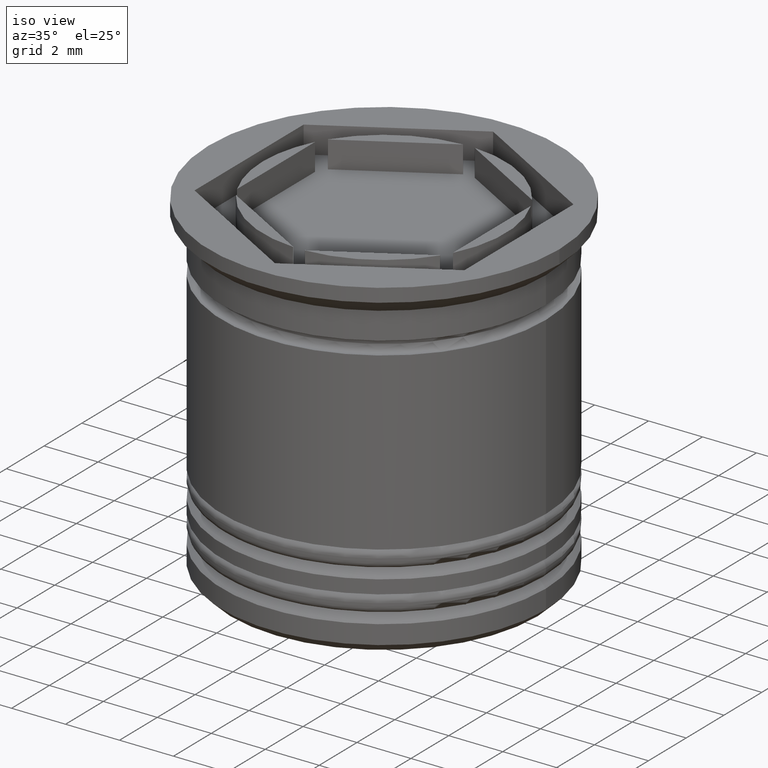
[diagram: clean part render]
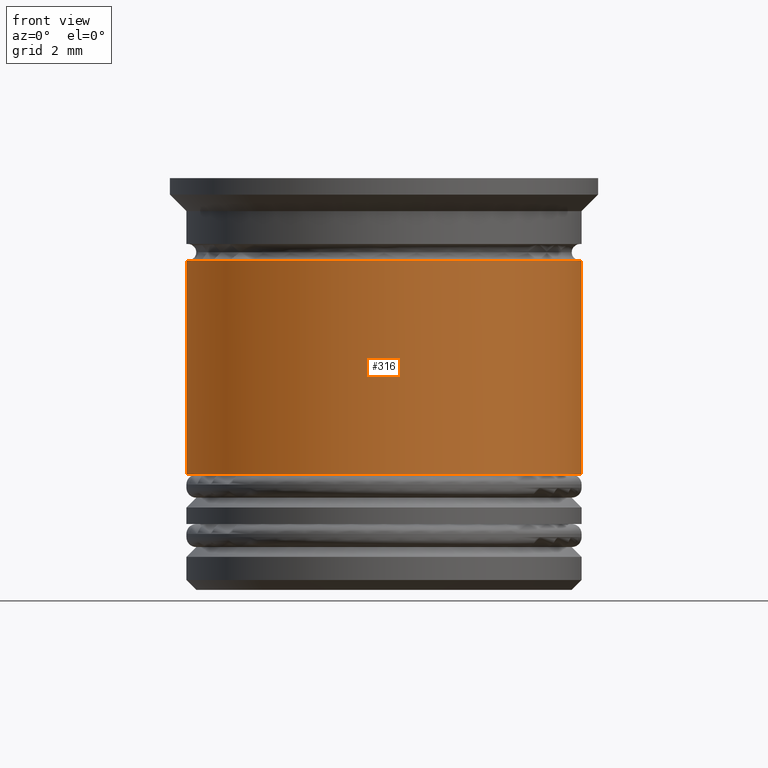
[diagram: tour spotlight — one face highlighted and labeled with its STEP entity id]
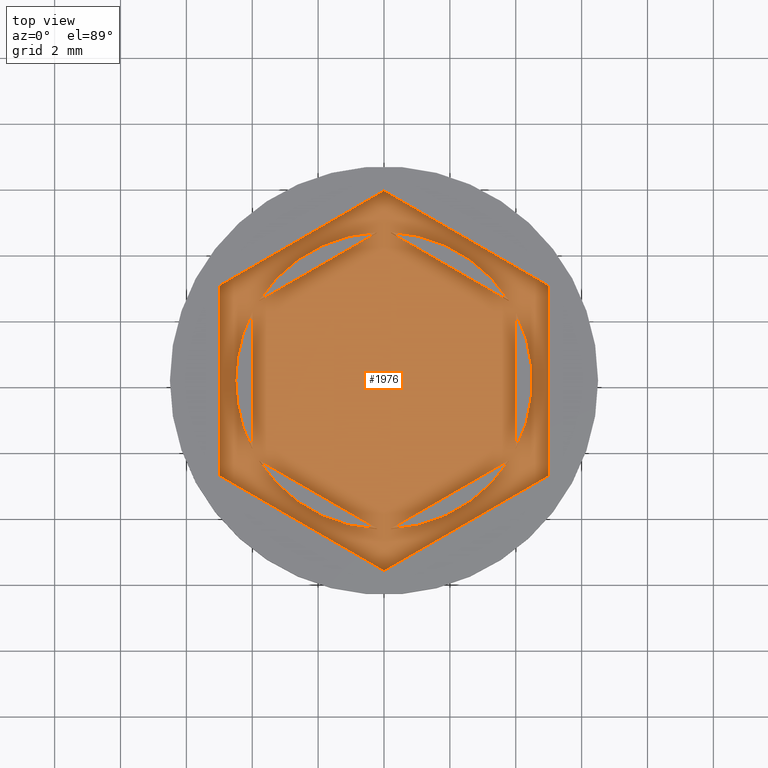
[diagram: tour spotlight — one face highlighted and labeled with its STEP entity id]
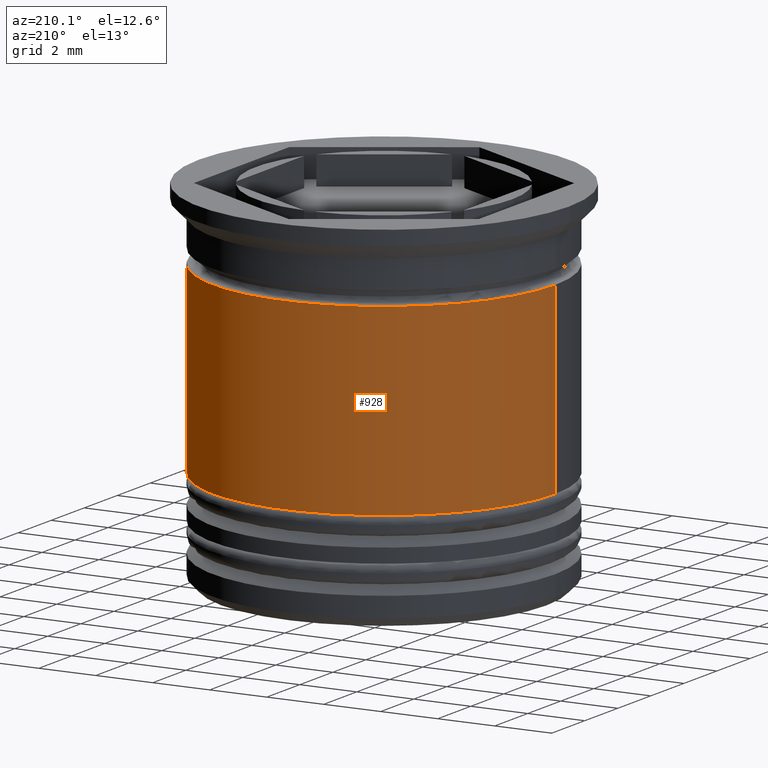
[diagram: tour spotlight — one face highlighted and labeled with its STEP entity id]
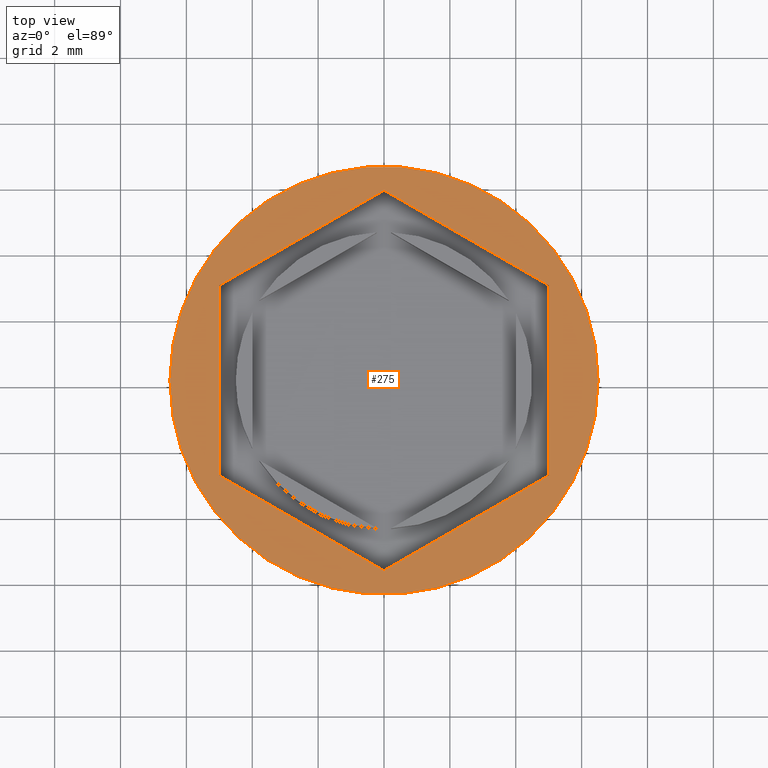
[diagram: tour spotlight — one face highlighted and labeled with its STEP entity id]
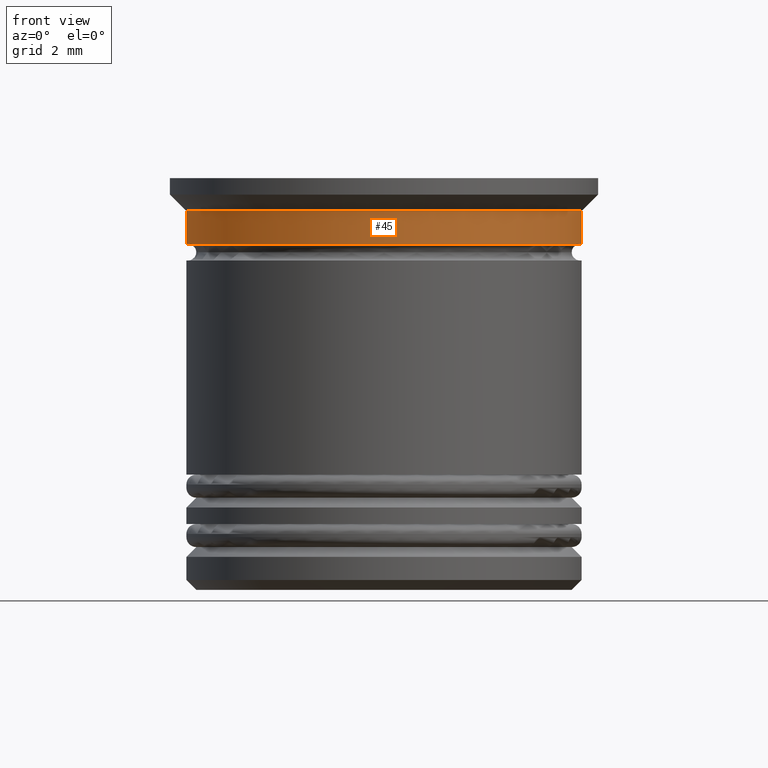
[diagram: tour spotlight — one face highlighted and labeled with its STEP entity id]
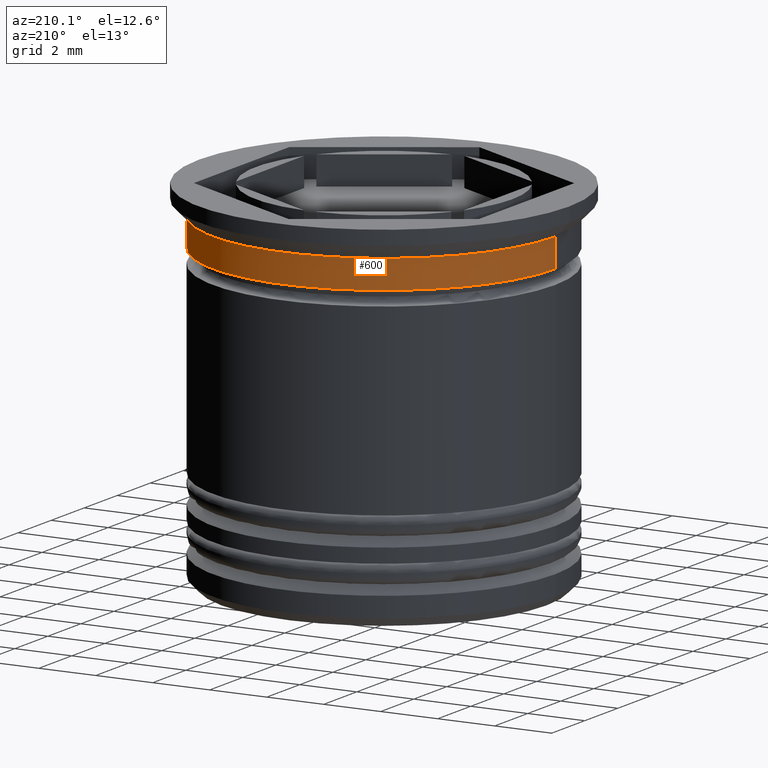
[diagram: tour spotlight — one face highlighted and labeled with its STEP entity id]
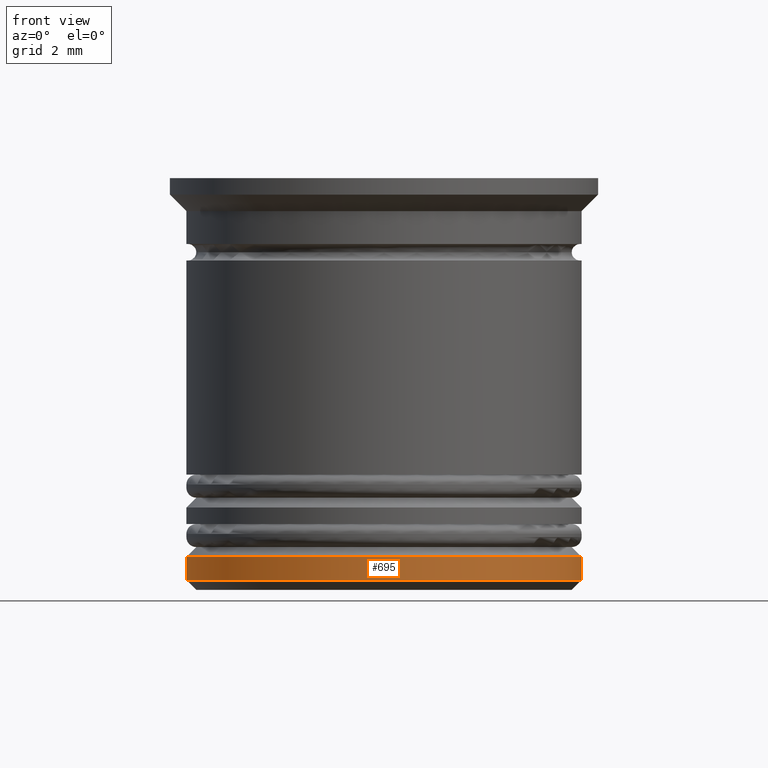
[diagram: tour spotlight — one face highlighted and labeled with its STEP entity id]
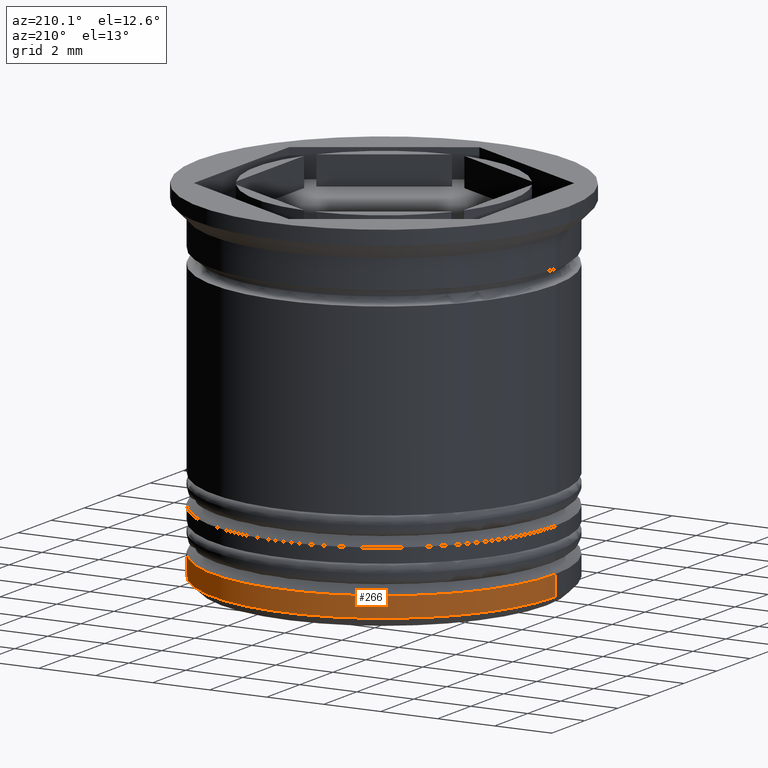
[diagram: tour spotlight — one face highlighted and labeled with its STEP entity id]
A machine part: a face-by-face anatomy tour. The part has 74 B-rep faces; the first image is the clean iso view, then the 8 largest visible faces are spotlighted one at a time (largest first), each with its STEP entity span.

Face 1 — front view, entity #316. In plain terms, the highlighted cylindrical surface (partial cylindrical patch) has radius 6 mm, axis along (-0, -0, 1).
Definition (entity closure, byte-faithful):
#32 = CARTESIAN_POINT ( 'NONE',  ( 5.999999999999999112, 0.000000000000000000, -2.500000000000000000 ) ) ;
#50 = VERTEX_POINT ( 'NONE', #710 ) ;
#149 = AXIS2_PLACEMENT_3D ( 'NONE', #1344, #152, #914 ) ;
#152 = DIRECTION ( 'NONE',  ( -0.000000000000000000, -0.000000000000000000, 1.000000000000000000 ) ) ;
#154 = VECTOR ( 'NONE', #1806, 1000.000000000000000 ) ;
#242 = AXIS2_PLACEMENT_3D ( 'NONE', #1054, #1062, #1520 ) ;
#301 = FACE_OUTER_BOUND ( 'NONE', #1160, .T. ) ;
#316 = ADVANCED_FACE ( 'NONE', ( #301 ), #1672, .T. ) ;
#348 = EDGE_CURVE ( 'NONE', #50, #1760, #1508, .T. ) ;
#366 = DIRECTION ( 'NONE',  ( -0.000000000000000000, -0.000000000000000000, 1.000000000000000000 ) ) ;
#375 = ORIENTED_EDGE ( 'NONE', *, *, #609, .F. ) ;
#504 = ORIENTED_EDGE ( 'NONE', *, *, #348, .T. ) ;
#531 = EDGE_CURVE ( 'NONE', #50, #1707, #628, .T. ) ;
#536 = VECTOR ( 'NONE', #366, 1000.000000000000000 ) ;
#566 = DIRECTION ( 'NONE',  ( 1.000000000000000000, 0.000000000000000000, 0.000000000000000000 ) ) ;
#609 = EDGE_CURVE ( 'NONE', #1707, #1503, #1417, .T. ) ;
#628 = LINE ( 'NONE', #1727, #536 ) ;
#710 = CARTESIAN_POINT ( 'NONE',  ( -6.000000000000001776, 7.347880794884121708E-16, -9.000000000000001776 ) ) ;
#796 = AXIS2_PLACEMENT_3D ( 'NONE', #1941, #880, #566 ) ;
#880 = DIRECTION ( 'NONE',  ( -0.000000000000000000, -0.000000000000000000, 1.000000000000000000 ) ) ;
#883 = CARTESIAN_POINT ( 'NONE',  ( 6.000000000000001776, 0.000000000000000000, -9.000000000000001776 ) ) ;
#914 = DIRECTION ( 'NONE',  ( 1.000000000000000000, 0.000000000000000000, 0.000000000000000000 ) ) ;
#1054 = CARTESIAN_POINT ( 'NONE',  ( 0.000000000000000000, 0.000000000000000000, 0.000000000000000000 ) ) ;
#1062 = DIRECTION ( 'NONE',  ( -0.000000000000000000, -0.000000000000000000, 1.000000000000000000 ) ) ;
#1160 = EDGE_LOOP ( 'NONE', ( #1589, #504, #1721, #375 ) ) ;
#1337 = LINE ( 'NONE', #1960, #154 ) ;
#1344 = CARTESIAN_POINT ( 'NONE',  ( 0.000000000000000000, 0.000000000000000000, -9.000000000000001776 ) ) ;
#1375 = CARTESIAN_POINT ( 'NONE',  ( -5.999999999999999112, 7.347880794884118750E-16, -2.500000000000000000 ) ) ;
#1417 = CIRCLE ( 'NONE', #796, 5.999999999999999112 ) ;
#1503 = VERTEX_POINT ( 'NONE', #32 ) ;
#1508 = CIRCLE ( 'NONE', #149, 6.000000000000001776 ) ;
#1520 = DIRECTION ( 'NONE',  ( 1.000000000000000000, 0.000000000000000000, 0.000000000000000000 ) ) ;
#1589 = ORIENTED_EDGE ( 'NONE', *, *, #531, .F. ) ;
#1628 = EDGE_CURVE ( 'NONE', #1760, #1503, #1337, .T. ) ;
#1672 = CYLINDRICAL_SURFACE ( 'NONE', #242, 6.000000000000000000 ) ;
#1707 = VERTEX_POINT ( 'NONE', #1375 ) ;
#1721 = ORIENTED_EDGE ( 'NONE', *, *, #1628, .T. ) ;
#1727 = CARTESIAN_POINT ( 'NONE',  ( -6.000000000000000000, 7.347880794884119736E-16, 0.000000000000000000 ) ) ;
#1760 = VERTEX_POINT ( 'NONE', #883 ) ;
#1806 = DIRECTION ( 'NONE',  ( -0.000000000000000000, -0.000000000000000000, 1.000000000000000000 ) ) ;
#1941 = CARTESIAN_POINT ( 'NONE',  ( 0.000000000000000000, 0.000000000000000000, -2.500000000000000000 ) ) ;
#1960 = CARTESIAN_POINT ( 'NONE',  ( 6.000000000000000000, 0.000000000000000000, 0.000000000000000000 ) ) ;

Face 2 — top view, entity #1976. In plain terms, the highlighted planar face has unit normal (0, 0, 1).
Definition (entity closure, byte-faithful):
#2 = CARTESIAN_POINT ( 'NONE',  ( -5.000000000000000000, -2.886751345948129543, -1.000000000000000000 ) ) ;
#4 = ORIENTED_EDGE ( 'NONE', *, *, #1187, .F. ) ;
#11 = CARTESIAN_POINT ( 'NONE',  ( 0.2146428928642856726, 4.494878021542170643, -1.000000000000000888 ) ) ;
#23 = DIRECTION ( 'NONE',  ( 1.000000000000000000, 0.000000000000000000, 0.000000000000000000 ) ) ;
#29 = LINE ( 'NONE', #878, #1613 ) ;
#33 = DIRECTION ( 'NONE',  ( 0.000000000000000000, 0.000000000000000000, 1.000000000000000000 ) ) ;
#42 = DIRECTION ( 'NONE',  ( 1.502314598737159278E-16, 1.000000000000000000, 0.000000000000000000 ) ) ;
#49 = FACE_BOUND ( 'NONE', #1371, .T. ) ;
#59 = VECTOR ( 'NONE', #543, 1000.000000000000000 ) ;
#90 = LINE ( 'NONE', #1980, #325 ) ;
#103 = DIRECTION ( 'NONE',  ( 0.000000000000000000, 0.000000000000000000, 1.000000000000000000 ) ) ;
#128 = AXIS2_PLACEMENT_3D ( 'NONE', #404, #1008, #1793 ) ;
#134 = LINE ( 'NONE', #1654, #1099 ) ;
#140 = CIRCLE ( 'NONE', #1663, 4.500000000000000888 ) ;
#141 = CARTESIAN_POINT ( 'NONE',  ( 5.000000000000000000, -2.886751345948128211, -1.000000000000000000 ) ) ;
#186 = EDGE_CURVE ( 'NONE', #1439, #556, #1205, .T. ) ;
#191 = EDGE_LOOP ( 'NONE', ( #1962, #960 ) ) ;
#201 = DIRECTION ( 'NONE',  ( -0.8660254037844388186, 0.4999999999999997224, 0.000000000000000000 ) ) ;
#205 = PLANE ( 'NONE',  #1677 ) ;
#208 = ORIENTED_EDGE ( 'NONE', *, *, #1516, .F. ) ;
#215 = DIRECTION ( 'NONE',  ( 0.000000000000000000, 0.000000000000000000, 1.000000000000000000 ) ) ;
#216 = VERTEX_POINT ( 'NONE', #1853 ) ;
#218 = CARTESIAN_POINT ( 'NONE',  ( 3.785357107135712162, -2.433325208733341238, -1.000000000000000888 ) ) ;
#221 = EDGE_LOOP ( 'NONE', ( #889, #899 ) ) ;
#234 = CARTESIAN_POINT ( 'NONE',  ( -4.999999999999999112, 2.886751345948126879, -1.000000000000000000 ) ) ;
#257 = CIRCLE ( 'NONE', #636, 4.500000000000000888 ) ;
#274 = ORIENTED_EDGE ( 'NONE', *, *, #1876, .F. ) ;
#302 = ORIENTED_EDGE ( 'NONE', *, *, #1301, .F. ) ;
#325 = VECTOR ( 'NONE', #1056, 999.9999999999998863 ) ;
#326 = EDGE_CURVE ( 'NONE', #349, #1794, #134, .T. ) ;
#338 = DIRECTION ( 'NONE',  ( -0.8660254037844384856, -0.5000000000000002220, 0.000000000000000000 ) ) ;
#349 = VERTEX_POINT ( 'NONE', #2 ) ;
#364 = CARTESIAN_POINT ( 'NONE',  ( 5.000000000000000000, -2.886751345948128211, -1.000000000000000000 ) ) ;
#365 = VERTEX_POINT ( 'NONE', #11 ) ;
#400 = EDGE_CURVE ( 'NONE', #556, #1439, #140, .T. ) ;
#404 = CARTESIAN_POINT ( 'NONE',  ( 0.000000000000000000, 0.000000000000000000, -1.000000000000000000 ) ) ;
#423 = DIRECTION ( 'NONE',  ( 0.8660254037844387076, -0.4999999999999998890, 0.000000000000000000 ) ) ;
#424 = ORIENTED_EDGE ( 'NONE', *, *, #1958, .F. ) ;
#433 = CARTESIAN_POINT ( 'NONE',  ( -3.785357107135713051, -2.433325208733340794, -1.000000000000000888 ) ) ;
#439 = DIRECTION ( 'NONE',  ( 1.000000000000000000, 0.000000000000000000, -0.000000000000000000 ) ) ;
#448 = CARTESIAN_POINT ( 'NONE',  ( 0.000000000000000000, 0.000000000000000000, -1.000000000000000000 ) ) ;
#454 = CARTESIAN_POINT ( 'NONE',  ( -4.999999999999999112, 2.886751345948126879, -1.000000000000000000 ) ) ;
#491 = EDGE_CURVE ( 'NONE', #1804, #349, #1591, .T. ) ;
#501 = FACE_BOUND ( 'NONE', #871, .T. ) ;
#517 = DIRECTION ( 'NONE',  ( 0.000000000000000000, 0.000000000000000000, 1.000000000000000000 ) ) ;
#518 = VERTEX_POINT ( 'NONE', #856 ) ;
#521 = VERTEX_POINT ( 'NONE', #1440 ) ;
#532 = LINE ( 'NONE', #1244, #890 ) ;
#543 = DIRECTION ( 'NONE',  ( 0.000000000000000000, 1.000000000000000000, 0.000000000000000000 ) ) ;
#556 = VERTEX_POINT ( 'NONE', #433 ) ;
#572 = CARTESIAN_POINT ( 'NONE',  ( 4.000000000000000000, 2.061552812808830737, -1.000000000000000888 ) ) ;
#619 = EDGE_CURVE ( 'NONE', #936, #1352, #643, .T. ) ;
#621 = ORIENTED_EDGE ( 'NONE', *, *, #762, .F. ) ;
#626 = EDGE_CURVE ( 'NONE', #1647, #820, #1359, .T. ) ;
#630 = VECTOR ( 'NONE', #42, 1000.000000000000000 ) ;
#634 = CARTESIAN_POINT ( 'NONE',  ( -4.000000000000000000, -2.309401076758503368, -1.000000000000000888 ) ) ;
#636 = AXIS2_PLACEMENT_3D ( 'NONE', #964, #1849, #23 ) ;
#642 = EDGE_CURVE ( 'NONE', #1352, #983, #532, .T. ) ;
#643 = LINE ( 'NONE', #364, #630 ) ;
#657 = FACE_BOUND ( 'NONE', #191, .T. ) ;
#660 = CIRCLE ( 'NONE', #1782, 4.500000000000000888 ) ;
#670 = CARTESIAN_POINT ( 'NONE',  ( 3.999999999999999112, -2.309401076758504257, -1.000000000000000888 ) ) ;
#702 = CARTESIAN_POINT ( 'NONE',  ( 5.000000000000000888, 2.886751345948129988, -1.000000000000000000 ) ) ;
#737 = EDGE_CURVE ( 'NONE', #365, #521, #29, .T. ) ;
#747 = DIRECTION ( 'NONE',  ( 0.8660254037844388186, -0.4999999999999996114, 0.000000000000000000 ) ) ;
#751 = CARTESIAN_POINT ( 'NONE',  ( -0.2146428928642885037, 4.494878021542171531, -1.000000000000000888 ) ) ;
#754 = EDGE_CURVE ( 'NONE', #1794, #936, #1961, .T. ) ;
#762 = EDGE_CURVE ( 'NONE', #216, #1485, #1579, .T. ) ;
#768 = DIRECTION ( 'NONE',  ( 0.000000000000000000, 0.000000000000000000, 1.000000000000000000 ) ) ;
#786 = EDGE_CURVE ( 'NONE', #1199, #1063, #1939, .T. ) ;
#805 = CARTESIAN_POINT ( 'NONE',  ( 0.2146428928642876155, -4.494878021542170643, -1.000000000000000888 ) ) ;
#820 = VERTEX_POINT ( 'NONE', #862 ) ;
#834 = VECTOR ( 'NONE', #338, 1000.000000000000227 ) ;
#835 = CARTESIAN_POINT ( 'NONE',  ( 0.000000000000000000, 0.000000000000000000, -1.000000000000000000 ) ) ;
#856 = CARTESIAN_POINT ( 'NONE',  ( -4.000000000000000000, 2.061552812808831625, -1.000000000000000888 ) ) ;
#862 = CARTESIAN_POINT ( 'NONE',  ( -3.785357107135713051, 2.433325208733340794, -1.000000000000000888 ) ) ;
#871 = EDGE_LOOP ( 'NONE', ( #1326, #302 ) ) ;
#878 = CARTESIAN_POINT ( 'NONE',  ( 4.000000000000000000, 2.309401076758503812, -1.000000000000000888 ) ) ;
#889 = ORIENTED_EDGE ( 'NONE', *, *, #400, .F. ) ;
#890 = VECTOR ( 'NONE', #201, 1000.000000000000000 ) ;
#897 = DIRECTION ( 'NONE',  ( 1.000000000000000000, 0.000000000000000000, 0.000000000000000000 ) ) ;
#899 = ORIENTED_EDGE ( 'NONE', *, *, #186, .F. ) ;
#936 = VERTEX_POINT ( 'NONE', #141 ) ;
#937 = VERTEX_POINT ( 'NONE', #572 ) ;
#960 = ORIENTED_EDGE ( 'NONE', *, *, #786, .F. ) ;
#964 = CARTESIAN_POINT ( 'NONE',  ( 0.000000000000000000, 0.000000000000000000, -1.000000000000000000 ) ) ;
#965 = ORIENTED_EDGE ( 'NONE', *, *, #737, .F. ) ;
#973 = CARTESIAN_POINT ( 'NONE',  ( 0.000000000000000000, 5.773502691896257311, -1.000000000000000000 ) ) ;
#975 = VECTOR ( 'NONE', #1211, 999.9999999999998863 ) ;
#983 = VERTEX_POINT ( 'NONE', #1491 ) ;
#999 = CARTESIAN_POINT ( 'NONE',  ( 0.000000000000000000, 0.000000000000000000, -1.000000000000000000 ) ) ;
#1008 = DIRECTION ( 'NONE',  ( 0.000000000000000000, 0.000000000000000000, 1.000000000000000000 ) ) ;
#1012 = CARTESIAN_POINT ( 'NONE',  ( 0.000000000000000000, 0.000000000000000000, -1.000000000000000000 ) ) ;
#1031 = EDGE_LOOP ( 'NONE', ( #1686, #4, #621 ) ) ;
#1056 = DIRECTION ( 'NONE',  ( 0.8660254037844387076, 0.5000000000000001110, -0.000000000000000000 ) ) ;
#1057 = CARTESIAN_POINT ( 'NONE',  ( 8.334195073742550113E-16, -5.773502691896256422, -1.000000000000000000 ) ) ;
#1063 = VERTEX_POINT ( 'NONE', #805 ) ;
#1078 = VECTOR ( 'NONE', #1460, 999.9999999999998863 ) ;
#1099 = VECTOR ( 'NONE', #747, 1000.000000000000000 ) ;
#1106 = FACE_OUTER_BOUND ( 'NONE', #1889, .T. ) ;
#1128 = DIRECTION ( 'NONE',  ( 1.000000000000000000, 0.000000000000000000, 0.000000000000000000 ) ) ;
#1134 = CARTESIAN_POINT ( 'NONE',  ( -4.000000000000000000, 2.309401076758503368, -1.000000000000000888 ) ) ;
#1144 = ORIENTED_EDGE ( 'NONE', *, *, #619, .T. ) ;
#1161 = ORIENTED_EDGE ( 'NONE', *, *, #754, .T. ) ;
#1187 = EDGE_CURVE ( 'NONE', #1485, #518, #1544, .T. ) ;
#1199 = VERTEX_POINT ( 'NONE', #218 ) ;
#1205 = LINE ( 'NONE', #634, #975 ) ;
#1211 = DIRECTION ( 'NONE',  ( -0.8660254037844387076, 0.5000000000000001110, 0.000000000000000000 ) ) ;
#1213 = VECTOR ( 'NONE', #1913, 1000.000000000000000 ) ;
#1228 = CARTESIAN_POINT ( 'NONE',  ( -0.2146428928642885037, -4.494878021542171531, -1.000000000000000888 ) ) ;
#1244 = CARTESIAN_POINT ( 'NONE',  ( 5.000000000000000888, 2.886751345948129988, -1.000000000000000000 ) ) ;
#1251 = FACE_BOUND ( 'NONE', #221, .T. ) ;
#1263 = AXIS2_PLACEMENT_3D ( 'NONE', #1012, #103, #1776 ) ;
#1291 = CIRCLE ( 'NONE', #128, 4.500000000000000888 ) ;
#1301 = EDGE_CURVE ( 'NONE', #820, #1647, #90, .T. ) ;
#1326 = ORIENTED_EDGE ( 'NONE', *, *, #626, .F. ) ;
#1331 = VECTOR ( 'NONE', #1414, 1000.000000000000000 ) ;
#1335 = CARTESIAN_POINT ( 'NONE',  ( 4.000000000000000000, -2.061552812808832513, -1.000000000000000888 ) ) ;
#1352 = VERTEX_POINT ( 'NONE', #702 ) ;
#1359 = CIRCLE ( 'NONE', #1482, 4.500000000000000888 ) ;
#1371 = EDGE_LOOP ( 'NONE', ( #274, #965 ) ) ;
#1393 = EDGE_CURVE ( 'NONE', #518, #216, #1550, .T. ) ;
#1395 = LINE ( 'NONE', #973, #834 ) ;
#1414 = DIRECTION ( 'NONE',  ( -1.877893248421448296E-16, -1.000000000000000000, 0.000000000000000000 ) ) ;
#1418 = VERTEX_POINT ( 'NONE', #1335 ) ;
#1439 = VERTEX_POINT ( 'NONE', #1228 ) ;
#1440 = CARTESIAN_POINT ( 'NONE',  ( 3.785357107135713495, 2.433325208733339906, -1.000000000000000888 ) ) ;
#1452 = EDGE_CURVE ( 'NONE', #983, #1804, #1395, .T. ) ;
#1460 = DIRECTION ( 'NONE',  ( 0.8660254037844387076, 0.4999999999999999445, 0.000000000000000000 ) ) ;
#1462 = EDGE_CURVE ( 'NONE', #1063, #1199, #257, .T. ) ;
#1482 = AXIS2_PLACEMENT_3D ( 'NONE', #1892, #517, #1128 ) ;
#1485 = VERTEX_POINT ( 'NONE', #1560 ) ;
#1491 = CARTESIAN_POINT ( 'NONE',  ( 0.000000000000000000, 5.773502691896257311, -1.000000000000000000 ) ) ;
#1515 = VECTOR ( 'NONE', #1764, 1000.000000000000114 ) ;
#1516 = EDGE_CURVE ( 'NONE', #937, #1418, #1730, .T. ) ;
#1544 = LINE ( 'NONE', #1134, #59 ) ;
#1550 = CIRCLE ( 'NONE', #1884, 4.500000000000000888 ) ;
#1560 = CARTESIAN_POINT ( 'NONE',  ( -4.000000000000000000, -2.061552812808831625, -1.000000000000000888 ) ) ;
#1579 = CIRCLE ( 'NONE', #1263, 4.500000000000000888 ) ;
#1591 = LINE ( 'NONE', #234, #1213 ) ;
#1613 = VECTOR ( 'NONE', #423, 1000.000000000000114 ) ;
#1615 = ORIENTED_EDGE ( 'NONE', *, *, #326, .T. ) ;
#1621 = ORIENTED_EDGE ( 'NONE', *, *, #642, .T. ) ;
#1646 = CARTESIAN_POINT ( 'NONE',  ( -4.336808689942017736E-16, -4.618802153517006737, -1.000000000000000888 ) ) ;
#1647 = VERTEX_POINT ( 'NONE', #751 ) ;
#1654 = CARTESIAN_POINT ( 'NONE',  ( -5.000000000000000000, -2.886751345948129543, -1.000000000000000000 ) ) ;
#1662 = ORIENTED_EDGE ( 'NONE', *, *, #1452, .T. ) ;
#1663 = AXIS2_PLACEMENT_3D ( 'NONE', #835, #215, #1923 ) ;
#1677 = AXIS2_PLACEMENT_3D ( 'NONE', #999, #768, #439 ) ;
#1686 = ORIENTED_EDGE ( 'NONE', *, *, #1393, .F. ) ;
#1730 = LINE ( 'NONE', #670, #1331 ) ;
#1739 = EDGE_LOOP ( 'NONE', ( #424, #208 ) ) ;
#1764 = DIRECTION ( 'NONE',  ( -0.8660254037844387076, -0.4999999999999998335, 0.000000000000000000 ) ) ;
#1776 = DIRECTION ( 'NONE',  ( 1.000000000000000000, 0.000000000000000000, 0.000000000000000000 ) ) ;
#1782 = AXIS2_PLACEMENT_3D ( 'NONE', #1860, #33, #1872 ) ;
#1790 = CARTESIAN_POINT ( 'NONE',  ( 8.334195073742550113E-16, -5.773502691896256422, -1.000000000000000000 ) ) ;
#1793 = DIRECTION ( 'NONE',  ( 1.000000000000000000, 0.000000000000000000, 0.000000000000000000 ) ) ;
#1794 = VERTEX_POINT ( 'NONE', #1057 ) ;
#1804 = VERTEX_POINT ( 'NONE', #454 ) ;
#1849 = DIRECTION ( 'NONE',  ( 0.000000000000000000, 0.000000000000000000, 1.000000000000000000 ) ) ;
#1853 = CARTESIAN_POINT ( 'NONE',  ( -4.500000000000000888, 0.000000000000000000, -1.000000000000000000 ) ) ;
#1860 = CARTESIAN_POINT ( 'NONE',  ( 0.000000000000000000, 0.000000000000000000, -1.000000000000000000 ) ) ;
#1871 = FACE_BOUND ( 'NONE', #1031, .T. ) ;
#1872 = DIRECTION ( 'NONE',  ( 1.000000000000000000, 0.000000000000000000, 0.000000000000000000 ) ) ;
#1876 = EDGE_CURVE ( 'NONE', #521, #365, #1291, .T. ) ;
#1884 = AXIS2_PLACEMENT_3D ( 'NONE', #448, #1967, #897 ) ;
#1889 = EDGE_LOOP ( 'NONE', ( #1621, #1662, #1938, #1615, #1161, #1144 ) ) ;
#1892 = CARTESIAN_POINT ( 'NONE',  ( 0.000000000000000000, 0.000000000000000000, -1.000000000000000000 ) ) ;
#1896 = FACE_BOUND ( 'NONE', #1739, .T. ) ;
#1913 = DIRECTION ( 'NONE',  ( -1.502314598737159771E-16, -1.000000000000000000, 0.000000000000000000 ) ) ;
#1923 = DIRECTION ( 'NONE',  ( 1.000000000000000000, 0.000000000000000000, 0.000000000000000000 ) ) ;
#1938 = ORIENTED_EDGE ( 'NONE', *, *, #491, .T. ) ;
#1939 = LINE ( 'NONE', #1646, #1515 ) ;
#1958 = EDGE_CURVE ( 'NONE', #1418, #937, #660, .T. ) ;
#1961 = LINE ( 'NONE', #1790, #1078 ) ;
#1962 = ORIENTED_EDGE ( 'NONE', *, *, #1462, .F. ) ;
#1967 = DIRECTION ( 'NONE',  ( 0.000000000000000000, 0.000000000000000000, 1.000000000000000000 ) ) ;
#1976 = ADVANCED_FACE ( 'NONE', ( #49, #1896, #657, #1251, #1871, #501, #1106 ), #205, .T. ) ;
#1980 = CARTESIAN_POINT ( 'NONE',  ( 0.000000000000000000, 4.618802153517006737, -1.000000000000000888 ) ) ;

Face 3 — auxiliary view, entity #928. In plain terms, the highlighted cylindrical surface (partial cylindrical patch) has radius 6 mm, axis along (-0, -0, 1).
Definition (entity closure, byte-faithful):
#32 = CARTESIAN_POINT ( 'NONE',  ( 5.999999999999999112, 0.000000000000000000, -2.500000000000000000 ) ) ;
#50 = VERTEX_POINT ( 'NONE', #710 ) ;
#85 = DIRECTION ( 'NONE',  ( -0.000000000000000000, -0.000000000000000000, 1.000000000000000000 ) ) ;
#154 = VECTOR ( 'NONE', #1806, 1000.000000000000000 ) ;
#199 = CARTESIAN_POINT ( 'NONE',  ( 0.000000000000000000, 0.000000000000000000, 0.000000000000000000 ) ) ;
#241 = DIRECTION ( 'NONE',  ( -0.000000000000000000, -0.000000000000000000, 1.000000000000000000 ) ) ;
#245 = CYLINDRICAL_SURFACE ( 'NONE', #696, 6.000000000000000000 ) ;
#291 = AXIS2_PLACEMENT_3D ( 'NONE', #1140, #85, #845 ) ;
#306 = ORIENTED_EDGE ( 'NONE', *, *, #1122, .F. ) ;
#366 = DIRECTION ( 'NONE',  ( -0.000000000000000000, -0.000000000000000000, 1.000000000000000000 ) ) ;
#369 = ORIENTED_EDGE ( 'NONE', *, *, #531, .T. ) ;
#391 = EDGE_CURVE ( 'NONE', #1760, #50, #850, .T. ) ;
#480 = CIRCLE ( 'NONE', #291, 5.999999999999999112 ) ;
#531 = EDGE_CURVE ( 'NONE', #50, #1707, #628, .T. ) ;
#536 = VECTOR ( 'NONE', #366, 1000.000000000000000 ) ;
#628 = LINE ( 'NONE', #1727, #536 ) ;
#696 = AXIS2_PLACEMENT_3D ( 'NONE', #199, #821, #701 ) ;
#701 = DIRECTION ( 'NONE',  ( 1.000000000000000000, 0.000000000000000000, 0.000000000000000000 ) ) ;
#710 = CARTESIAN_POINT ( 'NONE',  ( -6.000000000000001776, 7.347880794884121708E-16, -9.000000000000001776 ) ) ;
#757 = CARTESIAN_POINT ( 'NONE',  ( 0.000000000000000000, 0.000000000000000000, -9.000000000000001776 ) ) ;
#821 = DIRECTION ( 'NONE',  ( -0.000000000000000000, -0.000000000000000000, 1.000000000000000000 ) ) ;
#826 = DIRECTION ( 'NONE',  ( 1.000000000000000000, 0.000000000000000000, 0.000000000000000000 ) ) ;
#845 = DIRECTION ( 'NONE',  ( 1.000000000000000000, 0.000000000000000000, 0.000000000000000000 ) ) ;
#850 = CIRCLE ( 'NONE', #1402, 6.000000000000001776 ) ;
#883 = CARTESIAN_POINT ( 'NONE',  ( 6.000000000000001776, 0.000000000000000000, -9.000000000000001776 ) ) ;
#928 = ADVANCED_FACE ( 'NONE', ( #1101 ), #245, .T. ) ;
#1101 = FACE_OUTER_BOUND ( 'NONE', #1471, .T. ) ;
#1122 = EDGE_CURVE ( 'NONE', #1503, #1707, #480, .T. ) ;
#1140 = CARTESIAN_POINT ( 'NONE',  ( 0.000000000000000000, 0.000000000000000000, -2.500000000000000000 ) ) ;
#1337 = LINE ( 'NONE', #1960, #154 ) ;
#1375 = CARTESIAN_POINT ( 'NONE',  ( -5.999999999999999112, 7.347880794884118750E-16, -2.500000000000000000 ) ) ;
#1402 = AXIS2_PLACEMENT_3D ( 'NONE', #757, #241, #826 ) ;
#1471 = EDGE_LOOP ( 'NONE', ( #1953, #369, #306, #1593 ) ) ;
#1503 = VERTEX_POINT ( 'NONE', #32 ) ;
#1593 = ORIENTED_EDGE ( 'NONE', *, *, #1628, .F. ) ;
#1628 = EDGE_CURVE ( 'NONE', #1760, #1503, #1337, .T. ) ;
#1707 = VERTEX_POINT ( 'NONE', #1375 ) ;
#1727 = CARTESIAN_POINT ( 'NONE',  ( -6.000000000000000000, 7.347880794884119736E-16, 0.000000000000000000 ) ) ;
#1760 = VERTEX_POINT ( 'NONE', #883 ) ;
#1806 = DIRECTION ( 'NONE',  ( -0.000000000000000000, -0.000000000000000000, 1.000000000000000000 ) ) ;
#1953 = ORIENTED_EDGE ( 'NONE', *, *, #391, .T. ) ;
#1960 = CARTESIAN_POINT ( 'NONE',  ( 6.000000000000000000, 0.000000000000000000, 0.000000000000000000 ) ) ;

Face 4 — top view, entity #275. In plain terms, the highlighted planar face has unit normal (0, -0, 1).
Definition (entity closure, byte-faithful):
#3 = EDGE_CURVE ( 'NONE', #1349, #682, #1907, .T. ) ;
#24 = CARTESIAN_POINT ( 'NONE',  ( 0.000000000000000000, 5.773502691896257311, 0.000000000000000000 ) ) ;
#40 = CARTESIAN_POINT ( 'NONE',  ( 5.000000000000000888, 2.886751345948129988, 0.000000000000000000 ) ) ;
#68 = DIRECTION ( 'NONE',  ( 0.8660254037844388186, -0.4999999999999996114, 0.000000000000000000 ) ) ;
#79 = ORIENTED_EDGE ( 'NONE', *, *, #203, .T. ) ;
#89 = EDGE_LOOP ( 'NONE', ( #1631, #1356, #553, #579, #1390, #839 ) ) ;
#197 = DIRECTION ( 'NONE',  ( 0.8660254037844387076, 0.4999999999999999445, 0.000000000000000000 ) ) ;
#203 = EDGE_CURVE ( 'NONE', #412, #451, #1376, .T. ) ;
#214 = AXIS2_PLACEMENT_3D ( 'NONE', #362, #1563, #1125 ) ;
#236 = CARTESIAN_POINT ( 'NONE',  ( -5.000000000000000000, -2.886751345948129543, 0.000000000000000000 ) ) ;
#249 = CARTESIAN_POINT ( 'NONE',  ( 5.000000000000000888, 2.886751345948129988, 0.000000000000000000 ) ) ;
#275 = ADVANCED_FACE ( 'NONE', ( #945, #1115 ), #1542, .T. ) ;
#293 = ORIENTED_EDGE ( 'NONE', *, *, #1650, .T. ) ;
#295 = CARTESIAN_POINT ( 'NONE',  ( 5.000000000000000000, -2.886751345948128211, 0.000000000000000000 ) ) ;
#304 = CARTESIAN_POINT ( 'NONE',  ( 5.000000000000000000, -2.886751345948128211, 0.000000000000000000 ) ) ;
#362 = CARTESIAN_POINT ( 'NONE',  ( 0.000000000000000000, 0.000000000000000000, 0.000000000000000000 ) ) ;
#394 = CARTESIAN_POINT ( 'NONE',  ( 8.334195073742550113E-16, -5.773502691896256422, 0.000000000000000000 ) ) ;
#412 = VERTEX_POINT ( 'NONE', #1004 ) ;
#451 = VERTEX_POINT ( 'NONE', #1277 ) ;
#496 = CARTESIAN_POINT ( 'NONE',  ( 0.000000000000000000, 5.773502691896257311, 0.000000000000000000 ) ) ;
#526 = AXIS2_PLACEMENT_3D ( 'NONE', #1506, #1354, #1826 ) ;
#535 = EDGE_LOOP ( 'NONE', ( #293, #79 ) ) ;
#553 = ORIENTED_EDGE ( 'NONE', *, *, #1912, .F. ) ;
#579 = ORIENTED_EDGE ( 'NONE', *, *, #3, .F. ) ;
#601 = VECTOR ( 'NONE', #1239, 1000.000000000000227 ) ;
#653 = VERTEX_POINT ( 'NONE', #496 ) ;
#658 = CARTESIAN_POINT ( 'NONE',  ( -5.000000000000000000, -2.886751345948129543, 0.000000000000000000 ) ) ;
#663 = VECTOR ( 'NONE', #1951, 1000.000000000000000 ) ;
#669 = CARTESIAN_POINT ( 'NONE',  ( -4.999999999999999112, 2.886751345948126879, 0.000000000000000000 ) ) ;
#682 = VERTEX_POINT ( 'NONE', #822 ) ;
#822 = CARTESIAN_POINT ( 'NONE',  ( 8.334195073742550113E-16, -5.773502691896256422, 0.000000000000000000 ) ) ;
#825 = EDGE_CURVE ( 'NONE', #929, #653, #1324, .T. ) ;
#839 = ORIENTED_EDGE ( 'NONE', *, *, #1947, .F. ) ;
#885 = DIRECTION ( 'NONE',  ( -1.502314598737159771E-16, -1.000000000000000000, 0.000000000000000000 ) ) ;
#887 = DIRECTION ( 'NONE',  ( 1.502314598737159278E-16, 1.000000000000000000, 0.000000000000000000 ) ) ;
#929 = VERTEX_POINT ( 'NONE', #40 ) ;
#938 = EDGE_CURVE ( 'NONE', #1148, #1349, #1060, .T. ) ;
#945 = FACE_BOUND ( 'NONE', #89, .T. ) ;
#952 = VECTOR ( 'NONE', #197, 999.9999999999998863 ) ;
#1004 = CARTESIAN_POINT ( 'NONE',  ( -6.500000000000000000, 7.960204194457795477E-16, 0.000000000000000000 ) ) ;
#1060 = LINE ( 'NONE', #1812, #1821 ) ;
#1115 = FACE_OUTER_BOUND ( 'NONE', #535, .T. ) ;
#1125 = DIRECTION ( 'NONE',  ( 1.000000000000000000, 0.000000000000000000, 0.000000000000000000 ) ) ;
#1148 = VERTEX_POINT ( 'NONE', #669 ) ;
#1239 = DIRECTION ( 'NONE',  ( -0.8660254037844384856, -0.5000000000000002220, 0.000000000000000000 ) ) ;
#1262 = CIRCLE ( 'NONE', #1713, 6.500000000000000000 ) ;
#1268 = VECTOR ( 'NONE', #887, 1000.000000000000000 ) ;
#1277 = CARTESIAN_POINT ( 'NONE',  ( 6.500000000000000000, 0.000000000000000000, 0.000000000000000000 ) ) ;
#1281 = EDGE_CURVE ( 'NONE', #1827, #929, #1632, .T. ) ;
#1324 = LINE ( 'NONE', #249, #663 ) ;
#1349 = VERTEX_POINT ( 'NONE', #236 ) ;
#1354 = DIRECTION ( 'NONE',  ( -0.000000000000000000, -0.000000000000000000, 1.000000000000000000 ) ) ;
#1356 = ORIENTED_EDGE ( 'NONE', *, *, #1281, .F. ) ;
#1376 = CIRCLE ( 'NONE', #526, 6.500000000000000000 ) ;
#1383 = VECTOR ( 'NONE', #68, 1000.000000000000000 ) ;
#1390 = ORIENTED_EDGE ( 'NONE', *, *, #938, .F. ) ;
#1396 = LINE ( 'NONE', #24, #601 ) ;
#1506 = CARTESIAN_POINT ( 'NONE',  ( 0.000000000000000000, 0.000000000000000000, 0.000000000000000000 ) ) ;
#1542 = PLANE ( 'NONE',  #214 ) ;
#1563 = DIRECTION ( 'NONE',  ( 0.000000000000000000, -0.000000000000000000, 1.000000000000000000 ) ) ;
#1631 = ORIENTED_EDGE ( 'NONE', *, *, #825, .F. ) ;
#1632 = LINE ( 'NONE', #295, #1268 ) ;
#1643 = CARTESIAN_POINT ( 'NONE',  ( 0.000000000000000000, 0.000000000000000000, 0.000000000000000000 ) ) ;
#1650 = EDGE_CURVE ( 'NONE', #451, #412, #1262, .T. ) ;
#1691 = DIRECTION ( 'NONE',  ( 1.000000000000000000, 0.000000000000000000, 0.000000000000000000 ) ) ;
#1713 = AXIS2_PLACEMENT_3D ( 'NONE', #1643, #1847, #1691 ) ;
#1812 = CARTESIAN_POINT ( 'NONE',  ( -4.999999999999999112, 2.886751345948126879, 0.000000000000000000 ) ) ;
#1821 = VECTOR ( 'NONE', #885, 1000.000000000000000 ) ;
#1826 = DIRECTION ( 'NONE',  ( 1.000000000000000000, 0.000000000000000000, 0.000000000000000000 ) ) ;
#1827 = VERTEX_POINT ( 'NONE', #304 ) ;
#1847 = DIRECTION ( 'NONE',  ( -0.000000000000000000, -0.000000000000000000, 1.000000000000000000 ) ) ;
#1907 = LINE ( 'NONE', #658, #1383 ) ;
#1912 = EDGE_CURVE ( 'NONE', #682, #1827, #1945, .T. ) ;
#1945 = LINE ( 'NONE', #394, #952 ) ;
#1947 = EDGE_CURVE ( 'NONE', #653, #1148, #1396, .T. ) ;
#1951 = DIRECTION ( 'NONE',  ( -0.8660254037844388186, 0.4999999999999997224, 0.000000000000000000 ) ) ;

Face 5 — front view, entity #45. In plain terms, the highlighted cylindrical surface (partial cylindrical patch) has radius 6 mm, axis along (-0, -0, 1).
Definition (entity closure, byte-faithful):
#45 = ADVANCED_FACE ( 'NONE', ( #1783 ), #268, .T. ) ;
#72 = DIRECTION ( 'NONE',  ( 1.000000000000000000, 0.000000000000000000, 0.000000000000000000 ) ) ;
#111 = VERTEX_POINT ( 'NONE', #1343 ) ;
#132 = CARTESIAN_POINT ( 'NONE',  ( 5.999999999999999112, 0.000000000000000000, -2.000000000000000444 ) ) ;
#159 = VERTEX_POINT ( 'NONE', #132 ) ;
#251 = LINE ( 'NONE', #519, #1599 ) ;
#262 = ORIENTED_EDGE ( 'NONE', *, *, #398, .T. ) ;
#268 = CYLINDRICAL_SURFACE ( 'NONE', #1773, 5.999999999999998224 ) ;
#292 = CARTESIAN_POINT ( 'NONE',  ( 0.000000000000000000, 0.000000000000000000, -0.9999999999999995559 ) ) ;
#312 = CIRCLE ( 'NONE', #947, 5.999999999999998224 ) ;
#381 = EDGE_CURVE ( 'NONE', #1100, #111, #312, .T. ) ;
#398 = EDGE_CURVE ( 'NONE', #159, #111, #251, .T. ) ;
#470 = CARTESIAN_POINT ( 'NONE',  ( -5.999999999999998224, 7.347880794884117764E-16, -0.9999999999999995559 ) ) ;
#519 = CARTESIAN_POINT ( 'NONE',  ( 5.999999999999998224, 0.000000000000000000, 0.000000000000000000 ) ) ;
#639 = EDGE_LOOP ( 'NONE', ( #1392, #1223, #262, #1575 ) ) ;
#648 = LINE ( 'NONE', #1875, #1883 ) ;
#664 = EDGE_CURVE ( 'NONE', #1772, #159, #1982, .T. ) ;
#734 = CARTESIAN_POINT ( 'NONE',  ( -6.000000000000000000, 7.347880794884119736E-16, -2.000000000000000444 ) ) ;
#898 = DIRECTION ( 'NONE',  ( -0.000000000000000000, -0.000000000000000000, 1.000000000000000000 ) ) ;
#931 = EDGE_CURVE ( 'NONE', #1772, #1100, #648, .T. ) ;
#947 = AXIS2_PLACEMENT_3D ( 'NONE', #292, #898, #1493 ) ;
#969 = CARTESIAN_POINT ( 'NONE',  ( 0.000000000000000000, 0.000000000000000000, -2.000000000000000444 ) ) ;
#1046 = AXIS2_PLACEMENT_3D ( 'NONE', #969, #1146, #72 ) ;
#1051 = DIRECTION ( 'NONE',  ( -0.000000000000000000, -0.000000000000000000, 1.000000000000000000 ) ) ;
#1100 = VERTEX_POINT ( 'NONE', #470 ) ;
#1130 = DIRECTION ( 'NONE',  ( -0.000000000000000000, -0.000000000000000000, 1.000000000000000000 ) ) ;
#1146 = DIRECTION ( 'NONE',  ( -0.000000000000000000, -0.000000000000000000, 1.000000000000000000 ) ) ;
#1223 = ORIENTED_EDGE ( 'NONE', *, *, #664, .T. ) ;
#1333 = CARTESIAN_POINT ( 'NONE',  ( 0.000000000000000000, 0.000000000000000000, 0.000000000000000000 ) ) ;
#1343 = CARTESIAN_POINT ( 'NONE',  ( 5.999999999999998224, 0.000000000000000000, -0.9999999999999995559 ) ) ;
#1392 = ORIENTED_EDGE ( 'NONE', *, *, #931, .F. ) ;
#1456 = DIRECTION ( 'NONE',  ( 1.000000000000000000, 0.000000000000000000, 0.000000000000000000 ) ) ;
#1493 = DIRECTION ( 'NONE',  ( 1.000000000000000000, 0.000000000000000000, 0.000000000000000000 ) ) ;
#1575 = ORIENTED_EDGE ( 'NONE', *, *, #381, .F. ) ;
#1599 = VECTOR ( 'NONE', #1130, 1000.000000000000000 ) ;
#1630 = DIRECTION ( 'NONE',  ( -0.000000000000000000, -0.000000000000000000, 1.000000000000000000 ) ) ;
#1772 = VERTEX_POINT ( 'NONE', #734 ) ;
#1773 = AXIS2_PLACEMENT_3D ( 'NONE', #1333, #1051, #1456 ) ;
#1783 = FACE_OUTER_BOUND ( 'NONE', #639, .T. ) ;
#1875 = CARTESIAN_POINT ( 'NONE',  ( -5.999999999999998224, 7.347880794884117764E-16, 0.000000000000000000 ) ) ;
#1883 = VECTOR ( 'NONE', #1630, 1000.000000000000000 ) ;
#1982 = CIRCLE ( 'NONE', #1046, 5.999999999999999112 ) ;

Face 6 — auxiliary view, entity #600. In plain terms, the highlighted cylindrical surface (partial cylindrical patch) has radius 6 mm, axis along (-0, -0, 1).
Definition (entity closure, byte-faithful):
#14 = AXIS2_PLACEMENT_3D ( 'NONE', #783, #1638, #1049 ) ;
#91 = EDGE_CURVE ( 'NONE', #111, #1100, #1636, .T. ) ;
#105 = DIRECTION ( 'NONE',  ( 1.000000000000000000, 0.000000000000000000, 0.000000000000000000 ) ) ;
#107 = CARTESIAN_POINT ( 'NONE',  ( 0.000000000000000000, 0.000000000000000000, -0.9999999999999995559 ) ) ;
#111 = VERTEX_POINT ( 'NONE', #1343 ) ;
#132 = CARTESIAN_POINT ( 'NONE',  ( 5.999999999999999112, 0.000000000000000000, -2.000000000000000444 ) ) ;
#159 = VERTEX_POINT ( 'NONE', #132 ) ;
#251 = LINE ( 'NONE', #519, #1599 ) ;
#378 = CIRCLE ( 'NONE', #14, 5.999999999999999112 ) ;
#388 = ORIENTED_EDGE ( 'NONE', *, *, #1726, .T. ) ;
#398 = EDGE_CURVE ( 'NONE', #159, #111, #251, .T. ) ;
#425 = DIRECTION ( 'NONE',  ( -0.000000000000000000, -0.000000000000000000, 1.000000000000000000 ) ) ;
#464 = AXIS2_PLACEMENT_3D ( 'NONE', #107, #1195, #1956 ) ;
#470 = CARTESIAN_POINT ( 'NONE',  ( -5.999999999999998224, 7.347880794884117764E-16, -0.9999999999999995559 ) ) ;
#519 = CARTESIAN_POINT ( 'NONE',  ( 5.999999999999998224, 0.000000000000000000, 0.000000000000000000 ) ) ;
#580 = FACE_OUTER_BOUND ( 'NONE', #1815, .T. ) ;
#600 = ADVANCED_FACE ( 'NONE', ( #580 ), #1778, .T. ) ;
#648 = LINE ( 'NONE', #1875, #1883 ) ;
#694 = AXIS2_PLACEMENT_3D ( 'NONE', #1018, #425, #105 ) ;
#734 = CARTESIAN_POINT ( 'NONE',  ( -6.000000000000000000, 7.347880794884119736E-16, -2.000000000000000444 ) ) ;
#783 = CARTESIAN_POINT ( 'NONE',  ( 0.000000000000000000, 0.000000000000000000, -2.000000000000000444 ) ) ;
#810 = ORIENTED_EDGE ( 'NONE', *, *, #91, .F. ) ;
#818 = ORIENTED_EDGE ( 'NONE', *, *, #931, .T. ) ;
#931 = EDGE_CURVE ( 'NONE', #1772, #1100, #648, .T. ) ;
#1018 = CARTESIAN_POINT ( 'NONE',  ( 0.000000000000000000, 0.000000000000000000, 0.000000000000000000 ) ) ;
#1049 = DIRECTION ( 'NONE',  ( 1.000000000000000000, 0.000000000000000000, 0.000000000000000000 ) ) ;
#1100 = VERTEX_POINT ( 'NONE', #470 ) ;
#1130 = DIRECTION ( 'NONE',  ( -0.000000000000000000, -0.000000000000000000, 1.000000000000000000 ) ) ;
#1195 = DIRECTION ( 'NONE',  ( -0.000000000000000000, -0.000000000000000000, 1.000000000000000000 ) ) ;
#1343 = CARTESIAN_POINT ( 'NONE',  ( 5.999999999999998224, 0.000000000000000000, -0.9999999999999995559 ) ) ;
#1478 = ORIENTED_EDGE ( 'NONE', *, *, #398, .F. ) ;
#1599 = VECTOR ( 'NONE', #1130, 1000.000000000000000 ) ;
#1630 = DIRECTION ( 'NONE',  ( -0.000000000000000000, -0.000000000000000000, 1.000000000000000000 ) ) ;
#1636 = CIRCLE ( 'NONE', #464, 5.999999999999998224 ) ;
#1638 = DIRECTION ( 'NONE',  ( -0.000000000000000000, -0.000000000000000000, 1.000000000000000000 ) ) ;
#1726 = EDGE_CURVE ( 'NONE', #159, #1772, #378, .T. ) ;
#1772 = VERTEX_POINT ( 'NONE', #734 ) ;
#1778 = CYLINDRICAL_SURFACE ( 'NONE', #694, 5.999999999999998224 ) ;
#1815 = EDGE_LOOP ( 'NONE', ( #388, #818, #810, #1478 ) ) ;
#1875 = CARTESIAN_POINT ( 'NONE',  ( -5.999999999999998224, 7.347880794884117764E-16, 0.000000000000000000 ) ) ;
#1883 = VECTOR ( 'NONE', #1630, 1000.000000000000000 ) ;
#1956 = DIRECTION ( 'NONE',  ( 1.000000000000000000, 0.000000000000000000, 0.000000000000000000 ) ) ;

Face 7 — front view, entity #695. In plain terms, the highlighted cylindrical surface (partial cylindrical patch) has radius 6 mm, axis along (-0, -0, 1).
Definition (entity closure, byte-faithful):
#71 = ORIENTED_EDGE ( 'NONE', *, *, #981, .F. ) ;
#116 = DIRECTION ( 'NONE',  ( -0.000000000000000000, -0.000000000000000000, 1.000000000000000000 ) ) ;
#146 = EDGE_CURVE ( 'NONE', #1270, #229, #1283, .T. ) ;
#219 = DIRECTION ( 'NONE',  ( 1.000000000000000000, 0.000000000000000000, 0.000000000000000000 ) ) ;
#222 = DIRECTION ( 'NONE',  ( -0.000000000000000000, -0.000000000000000000, 1.000000000000000000 ) ) ;
#229 = VERTEX_POINT ( 'NONE', #1993 ) ;
#289 = DIRECTION ( 'NONE',  ( -0.000000000000000000, -0.000000000000000000, 1.000000000000000000 ) ) ;
#294 = CIRCLE ( 'NONE', #1298, 6.000000000000001776 ) ;
#327 = ORIENTED_EDGE ( 'NONE', *, *, #146, .T. ) ;
#413 = CARTESIAN_POINT ( 'NONE',  ( 6.000000000000001776, 0.000000000000000000, 0.000000000000000000 ) ) ;
#512 = CARTESIAN_POINT ( 'NONE',  ( -6.000000000000001776, 7.347880794884121708E-16, -12.19999999999999574 ) ) ;
#541 = EDGE_CURVE ( 'NONE', #978, #1270, #1473, .T. ) ;
#571 = DIRECTION ( 'NONE',  ( 0.000000000000000000, 0.000000000000000000, -1.000000000000000000 ) ) ;
#603 = CARTESIAN_POINT ( 'NONE',  ( 6.000000000000001776, 0.000000000000000000, -12.19999999999999574 ) ) ;
#675 = CYLINDRICAL_SURFACE ( 'NONE', #1292, 6.000000000000001776 ) ;
#676 = ORIENTED_EDGE ( 'NONE', *, *, #1329, .T. ) ;
#677 = DIRECTION ( 'NONE',  ( -1.000000000000000000, 0.000000000000000000, 0.000000000000000000 ) ) ;
#695 = ADVANCED_FACE ( 'NONE', ( #1258 ), #675, .T. ) ;
#832 = VECTOR ( 'NONE', #289, 1000.000000000000000 ) ;
#978 = VERTEX_POINT ( 'NONE', #603 ) ;
#981 = EDGE_CURVE ( 'NONE', #1014, #229, #1670, .T. ) ;
#994 = DIRECTION ( 'NONE',  ( -0.000000000000000000, -0.000000000000000000, 1.000000000000000000 ) ) ;
#1014 = VERTEX_POINT ( 'NONE', #512 ) ;
#1163 = CARTESIAN_POINT ( 'NONE',  ( 0.000000000000000000, 0.000000000000000000, -11.50000000000000533 ) ) ;
#1258 = FACE_OUTER_BOUND ( 'NONE', #1312, .T. ) ;
#1270 = VERTEX_POINT ( 'NONE', #1459 ) ;
#1283 = CIRCLE ( 'NONE', #1809, 6.000000000000001776 ) ;
#1292 = AXIS2_PLACEMENT_3D ( 'NONE', #1574, #994, #219 ) ;
#1298 = AXIS2_PLACEMENT_3D ( 'NONE', #1879, #222, #677 ) ;
#1312 = EDGE_LOOP ( 'NONE', ( #71, #676, #1756, #327 ) ) ;
#1329 = EDGE_CURVE ( 'NONE', #1014, #978, #294, .T. ) ;
#1459 = CARTESIAN_POINT ( 'NONE',  ( 6.000000000000001776, 0.000000000000000000, -11.50000000000000533 ) ) ;
#1473 = LINE ( 'NONE', #413, #1645 ) ;
#1574 = CARTESIAN_POINT ( 'NONE',  ( 0.000000000000000000, 0.000000000000000000, 0.000000000000000000 ) ) ;
#1640 = CARTESIAN_POINT ( 'NONE',  ( -6.000000000000001776, 7.347880794884121708E-16, 0.000000000000000000 ) ) ;
#1645 = VECTOR ( 'NONE', #116, 1000.000000000000000 ) ;
#1670 = LINE ( 'NONE', #1640, #832 ) ;
#1756 = ORIENTED_EDGE ( 'NONE', *, *, #541, .T. ) ;
#1809 = AXIS2_PLACEMENT_3D ( 'NONE', #1163, #571, #1924 ) ;
#1879 = CARTESIAN_POINT ( 'NONE',  ( 0.000000000000000000, 0.000000000000000000, -12.19999999999999574 ) ) ;
#1924 = DIRECTION ( 'NONE',  ( -1.000000000000000000, 0.000000000000000000, 0.000000000000000000 ) ) ;
#1993 = CARTESIAN_POINT ( 'NONE',  ( -6.000000000000001776, 7.347880794884121708E-16, -11.50000000000000533 ) ) ;

Face 8 — auxiliary view, entity #266. In plain terms, the highlighted cylindrical surface (partial cylindrical patch) has radius 6 mm, axis along (-0, -0, 1).
Definition (entity closure, byte-faithful):
#73 = ORIENTED_EDGE ( 'NONE', *, *, #981, .T. ) ;
#88 = CIRCLE ( 'NONE', #1720, 6.000000000000001776 ) ;
#116 = DIRECTION ( 'NONE',  ( -0.000000000000000000, -0.000000000000000000, 1.000000000000000000 ) ) ;
#118 = CARTESIAN_POINT ( 'NONE',  ( 0.000000000000000000, 0.000000000000000000, -11.50000000000000533 ) ) ;
#165 = ORIENTED_EDGE ( 'NONE', *, *, #541, .F. ) ;
#179 = CYLINDRICAL_SURFACE ( 'NONE', #1193, 6.000000000000001776 ) ;
#229 = VERTEX_POINT ( 'NONE', #1993 ) ;
#266 = ADVANCED_FACE ( 'NONE', ( #1532 ), #179, .T. ) ;
#289 = DIRECTION ( 'NONE',  ( -0.000000000000000000, -0.000000000000000000, 1.000000000000000000 ) ) ;
#318 = CIRCLE ( 'NONE', #1644, 6.000000000000001776 ) ;
#413 = CARTESIAN_POINT ( 'NONE',  ( 6.000000000000001776, 0.000000000000000000, 0.000000000000000000 ) ) ;
#512 = CARTESIAN_POINT ( 'NONE',  ( -6.000000000000001776, 7.347880794884121708E-16, -12.19999999999999574 ) ) ;
#541 = EDGE_CURVE ( 'NONE', #978, #1270, #1473, .T. ) ;
#603 = CARTESIAN_POINT ( 'NONE',  ( 6.000000000000001776, 0.000000000000000000, -12.19999999999999574 ) ) ;
#823 = ORIENTED_EDGE ( 'NONE', *, *, #1759, .T. ) ;
#832 = VECTOR ( 'NONE', #289, 1000.000000000000000 ) ;
#847 = ORIENTED_EDGE ( 'NONE', *, *, #1364, .T. ) ;
#902 = DIRECTION ( 'NONE',  ( 0.000000000000000000, 0.000000000000000000, -1.000000000000000000 ) ) ;
#955 = DIRECTION ( 'NONE',  ( 1.000000000000000000, 0.000000000000000000, 0.000000000000000000 ) ) ;
#978 = VERTEX_POINT ( 'NONE', #603 ) ;
#981 = EDGE_CURVE ( 'NONE', #1014, #229, #1670, .T. ) ;
#1014 = VERTEX_POINT ( 'NONE', #512 ) ;
#1158 = CARTESIAN_POINT ( 'NONE',  ( 0.000000000000000000, 0.000000000000000000, -12.19999999999999574 ) ) ;
#1193 = AXIS2_PLACEMENT_3D ( 'NONE', #1584, #1740, #955 ) ;
#1270 = VERTEX_POINT ( 'NONE', #1459 ) ;
#1318 = DIRECTION ( 'NONE',  ( -1.000000000000000000, 0.000000000000000000, 0.000000000000000000 ) ) ;
#1364 = EDGE_CURVE ( 'NONE', #978, #1014, #88, .T. ) ;
#1459 = CARTESIAN_POINT ( 'NONE',  ( 6.000000000000001776, 0.000000000000000000, -11.50000000000000533 ) ) ;
#1473 = LINE ( 'NONE', #413, #1645 ) ;
#1532 = FACE_OUTER_BOUND ( 'NONE', #1979, .T. ) ;
#1584 = CARTESIAN_POINT ( 'NONE',  ( 0.000000000000000000, 0.000000000000000000, 0.000000000000000000 ) ) ;
#1640 = CARTESIAN_POINT ( 'NONE',  ( -6.000000000000001776, 7.347880794884121708E-16, 0.000000000000000000 ) ) ;
#1644 = AXIS2_PLACEMENT_3D ( 'NONE', #118, #902, #1810 ) ;
#1645 = VECTOR ( 'NONE', #116, 1000.000000000000000 ) ;
#1670 = LINE ( 'NONE', #1640, #832 ) ;
#1720 = AXIS2_PLACEMENT_3D ( 'NONE', #1158, #1771, #1318 ) ;
#1740 = DIRECTION ( 'NONE',  ( -0.000000000000000000, -0.000000000000000000, 1.000000000000000000 ) ) ;
#1759 = EDGE_CURVE ( 'NONE', #229, #1270, #318, .T. ) ;
#1771 = DIRECTION ( 'NONE',  ( -0.000000000000000000, -0.000000000000000000, 1.000000000000000000 ) ) ;
#1810 = DIRECTION ( 'NONE',  ( -1.000000000000000000, 0.000000000000000000, 0.000000000000000000 ) ) ;
#1979 = EDGE_LOOP ( 'NONE', ( #847, #73, #823, #165 ) ) ;
#1993 = CARTESIAN_POINT ( 'NONE',  ( -6.000000000000001776, 7.347880794884121708E-16, -11.50000000000000533 ) ) ;